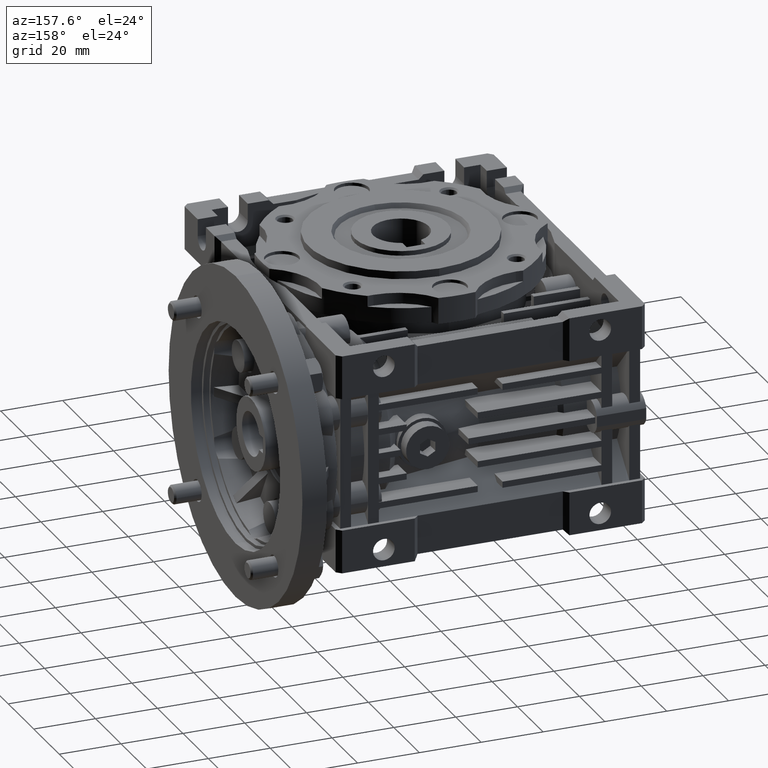
[diagram: clean part render]
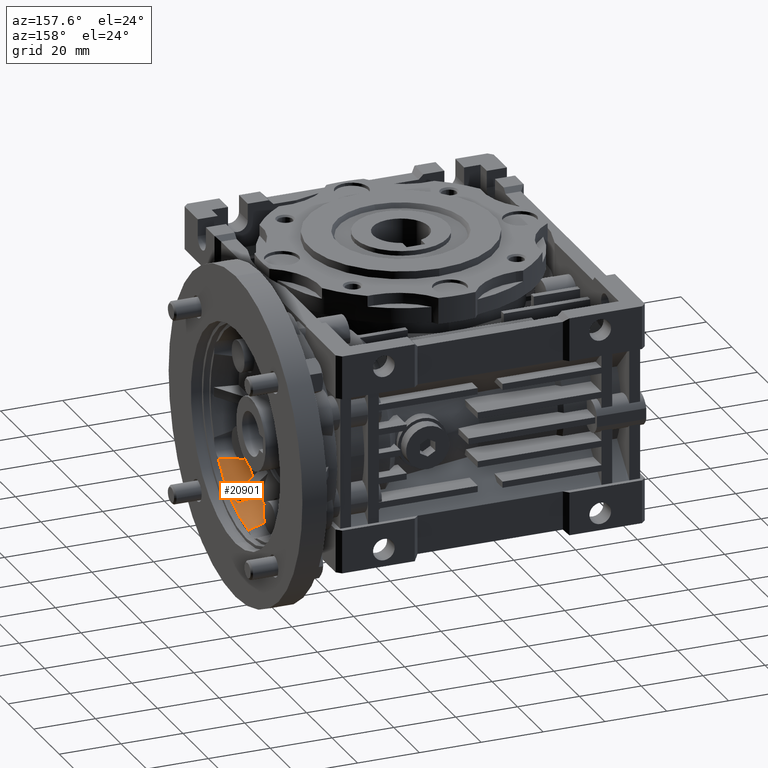
[diagram: same view with one face highlighted and labeled with its STEP entity id]
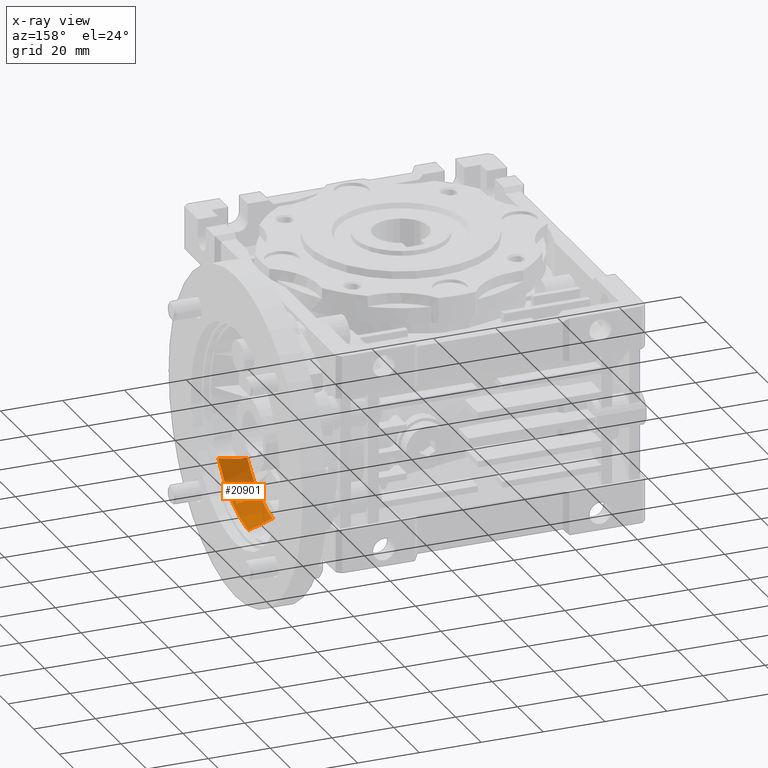
[diagram: x-ray of the same camera — body ghosted, the highlighted face saturated]
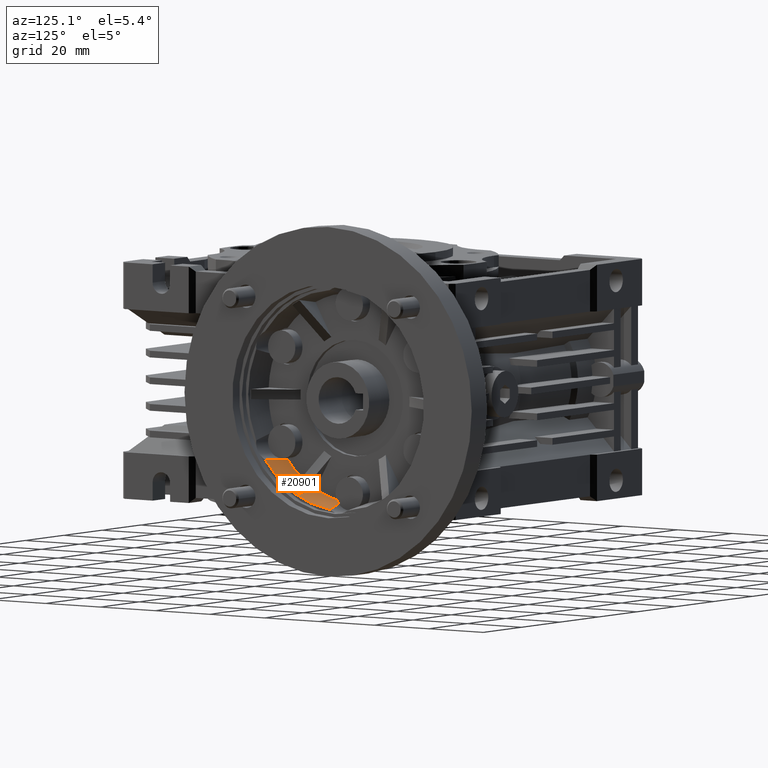
[diagram: same view with one face highlighted and labeled with its STEP entity id]
A machine part, auxiliary view. The second image highlights one B-rep face of the part: STEP entity #20901.
The next image is the same camera in x-ray: the body ghosted, the highlighted face saturated — about 1% of this face is hidden behind the body in this view.
A second angle (auxiliary view) of the same face is appended — the face is thin or edge-on in the first view.
In plain terms, the highlighted conical surface has half-angle 10 deg.
Its self-contained STEP definition (entity closure, byte-faithful):
#78 = AXIS2_PLACEMENT_3D ( 'NONE', #29719, #8530, #27412 ) ;
#464 = VERTEX_POINT ( 'NONE', #13999 ) ;
#839 = EDGE_LOOP ( 'NONE', ( #23889, #24155, #6917, #5422, #18368, #25917, #28679, #22511, #18985, #18391, #20325 ) ) ;
#957 = DIRECTION ( 'NONE',  ( -1.000000000000000000, 0.000000000000000000, 0.000000000000000000 ) ) ;
#1328 = CARTESIAN_POINT ( 'NONE',  ( 63.45000000000000284, 24.24504818301614861, -28.89929554276410428 ) ) ;
#1568 = AXIS2_PLACEMENT_3D ( 'NONE', #8133, #12939, #5805 ) ;
#1698 = CARTESIAN_POINT ( 'NONE',  ( 56.00000000000000000, 25.51623775645605008, -28.08661209056594998 ) ) ;
#1824 = AXIS2_PLACEMENT_3D ( 'NONE', #11896, #16501, #7544 ) ;
#2630 = CARTESIAN_POINT ( 'NONE',  ( 56.05498405366245152, 15.31827599214349966, -19.75000000000000000 ) ) ;
#3495 = CARTESIAN_POINT ( 'NONE',  ( 61.01182078064474723, 14.10770796952439810, -19.61835343876099103 ) ) ;
#3653 = CARTESIAN_POINT ( 'NONE',  ( 61.71407725827617696, 13.91813552930519471, -19.57283171435972235 ) ) ;
#4062 = CARTESIAN_POINT ( 'NONE',  ( 63.80401366623910064, 36.55971425548536757, -32.79799751969065369 ) ) ;
#4319 = CARTESIAN_POINT ( 'NONE',  ( 63.45000000000000284, 22.26063198869565340, -27.72548668974124908 ) ) ;
#4726 = DIRECTION ( 'NONE',  ( 0.000000000000000000, 0.000000000000000000, -1.000000000000000000 ) ) ;
#5222 = B_SPLINE_CURVE_WITH_KNOTS ( 'NONE', 3,
 ( #24876, #19491, #17307, #2630 ),
 .UNSPECIFIED., .F., .F.,
 ( 4, 4 ),
 ( 1.430489624538200128E-17, 5.625064284994350290E-05 ),
 .UNSPECIFIED. ) ;
#5321 = EDGE_CURVE ( 'NONE', #10626, #17032, #19171, .T. ) ;
#5422 = ORIENTED_EDGE ( 'NONE', *, *, #28759, .F. ) ;
#5734 = EDGE_CURVE ( 'NONE', #464, #17636, #10713, .T. ) ;
#5805 = DIRECTION ( 'NONE',  ( 0.000000000000000000, 0.000000000000000000, -1.000000000000000000 ) ) ;
#5910 = EDGE_CURVE ( 'NONE', #17452, #14572, #16380, .T. ) ;
#5972 = CARTESIAN_POINT ( 'NONE',  ( 64.50000000000000000, 36.75473790907711447, -32.94052631578951207 ) ) ;
#6388 = CARTESIAN_POINT ( 'NONE',  ( 61.69598390859453474, 36.08668373186583977, -32.37031947633499840 ) ) ;
#6648 = CARTESIAN_POINT ( 'NONE',  ( 58.48332995202519413, 22.69897544871635375, -26.96625354581984979 ) ) ;
#6917 = ORIENTED_EDGE ( 'NONE', *, *, #5734, .F. ) ;
#7390 = EDGE_CURVE ( 'NONE', #12076, #30443, #21822, .T. ) ;
#7544 = DIRECTION ( 'NONE',  ( 0.000000000000000000, 0.000000000000000000, -1.000000000000000000 ) ) ;
#7574 = EDGE_CURVE ( 'NONE', #9211, #10715, #12453, .T. ) ;
#7979 = AXIS2_PLACEMENT_3D ( 'NONE', #26597, #21634, #10037 ) ;
#8079 = DIRECTION ( 'NONE',  ( 0.000000000000000000, 0.000000000000000000, -1.000000000000000000 ) ) ;
#8133 = CARTESIAN_POINT ( 'NONE',  ( 56.00000000000000000, 40.00000000000000000, 0.000000000000000000 ) ) ;
#8139 = CARTESIAN_POINT ( 'NONE',  ( 58.89805993420311836, 14.65665499224591883, -19.72275360087351359 ) ) ;
#8298 = CARTESIAN_POINT ( 'NONE',  ( 56.05498405366245152, 15.31827599214349966, -19.75000000000000000 ) ) ;
#8530 = DIRECTION ( 'NONE',  ( 1.000000000000000000, 0.000000000000000000, 0.000000000000000000 ) ) ;
#8713 = CARTESIAN_POINT ( 'NONE',  ( 58.86161911471147334, 35.58566661508699980, -31.80210405803109097 ) ) ;
#9211 = VERTEX_POINT ( 'NONE', #26016 ) ;
#10037 = DIRECTION ( 'NONE',  ( 0.000000000000000000, 0.000000000000000000, -1.000000000000000000 ) ) ;
#10626 = VERTEX_POINT ( 'NONE', #5972 ) ;
#10713 = B_SPLINE_CURVE_WITH_KNOTS ( 'NONE', 3,
 ( #26949, #27573, #22615, #22299 ),
 .UNSPECIFIED., .F., .F.,
 ( 4, 4 ),
 ( 0.000000000000000000, 0.007565175508221579775 ),
 .UNSPECIFIED. ) ;
#10715 = VERTEX_POINT ( 'NONE', #26823 ) ;
#11569 = CARTESIAN_POINT ( 'NONE',  ( 63.45000000000000284, 40.00000000000000000, 0.000000000000000000 ) ) ;
#11896 = CARTESIAN_POINT ( 'NONE',  ( 64.50000000000000000, 40.00000000000000000, 0.000000000000000000 ) ) ;
#12076 = VERTEX_POINT ( 'NONE', #17839 ) ;
#12453 = B_SPLINE_CURVE_WITH_KNOTS ( 'NONE', 3,
 ( #8298, #17705, #8139, #3495, #3653, #26877, #22536, #24698 ),
 .UNSPECIFIED., .F., .F.,
 ( 4, 2, 2, 4 ),
 ( 1.507912809346807067E-16, 0.004372645825401456042, 0.006558968738102098628, 0.008745291650802761163 ),
 .UNSPECIFIED. ) ;
#12898 = CARTESIAN_POINT ( 'NONE',  ( 60.98915348931416247, 35.95190532233660008, -32.22800041462966902 ) ) ;
#12939 = DIRECTION ( 'NONE',  ( 1.000000000000000000, 0.000000000000000000, 0.000000000000000000 ) ) ;
#13087 = CARTESIAN_POINT ( 'NONE',  ( 63.37547788675198746, 23.31498393899530086, -28.36232270111505116 ) ) ;
#13239 = AXIS2_PLACEMENT_3D ( 'NONE', #22000, #957, #8079 ) ;
#13999 = CARTESIAN_POINT ( 'NONE',  ( 63.45000000000000284, 24.85870820004899784, -29.22548668974124908 ) ) ;
#14029 = CARTESIAN_POINT ( 'NONE',  ( 56.00000000000000000, 22.91816154510269854, -26.58661209056594998 ) ) ;
#14192 = FACE_OUTER_BOUND ( 'NONE', #839, .T. ) ;
#14572 = VERTEX_POINT ( 'NONE', #14029 ) ;
#14733 = EDGE_CURVE ( 'NONE', #17636, #17032, #23766, .T. ) ;
#14805 = EDGE_CURVE ( 'NONE', #30443, #22821, #17107, .T. ) ;
#15147 = CONICAL_SURFACE ( 'NONE', #1824, 33.09999999999999432, 0.1745329251994325870 ) ;
#15265 = CARTESIAN_POINT ( 'NONE',  ( 63.45000000000000284, 22.84995181698455013, -28.09383628029029722 ) ) ;
#16073 = CARTESIAN_POINT ( 'NONE',  ( 60.96666342072400369, 22.47979931293179945, -27.34587774880525046 ) ) ;
#16380 = CIRCLE ( 'NONE', #7979, 31.60122066397810059 ) ;
#16431 = CARTESIAN_POINT ( 'NONE',  ( 56.00000000000000711, 35.23066888404036234, -31.23924820093745325 ) ) ;
#16501 = DIRECTION ( 'NONE',  ( 1.000000000000000000, 0.000000000000000000, 0.000000000000000000 ) ) ;
#17032 = VERTEX_POINT ( 'NONE', #16431 ) ;
#17107 = B_SPLINE_CURVE_WITH_KNOTS ( 'NONE', 3,
 ( #20036, #13087, #22528, #1328 ),
 .UNSPECIFIED., .F., .F.,
 ( 4, 4 ),
 ( 8.456131959498519990E-16, 0.001610918524946755147 ),
 .UNSPECIFIED. ) ;
#17307 = CARTESIAN_POINT ( 'NONE',  ( 56.03665710497639907, 15.32241475479820103, -19.75000000000000000 ) ) ;
#17452 = VERTEX_POINT ( 'NONE', #19339 ) ;
#17636 = VERTEX_POINT ( 'NONE', #1698 ) ;
#17660 = CARTESIAN_POINT ( 'NONE',  ( 64.50000000000000000, 36.75473790907711447, -32.94052631578951207 ) ) ;
#17705 = CARTESIAN_POINT ( 'NONE',  ( 57.47966782043989298, 14.99654060292128932, -19.75000000000000355 ) ) ;
#17765 = EDGE_CURVE ( 'NONE', #14572, #12076, #21493, .T. ) ;
#17839 = CARTESIAN_POINT ( 'NONE',  ( 63.45000000000000284, 22.26063198869565340, -27.72548668974124908 ) ) ;
#18132 = CARTESIAN_POINT ( 'NONE',  ( 57.43397658757926649, 35.39169404444968592, -31.51961064043080896 ) ) ;
#18257 = CIRCLE ( 'NONE', #22224, 32.91485667025614958 ) ;
#18368 = ORIENTED_EDGE ( 'NONE', *, *, #14805, .F. ) ;
#18391 = ORIENTED_EDGE ( 'NONE', *, *, #7574, .T. ) ;
#18450 = EDGE_CURVE ( 'NONE', #17452, #9211, #5222, .T. ) ;
#18985 = ORIENTED_EDGE ( 'NONE', *, *, #18450, .T. ) ;
#19171 = B_SPLINE_CURVE_WITH_KNOTS ( 'NONE', 3,
 ( #17660, #4062, #29763, #6388, #12898, #8713, #18132, #22944 ),
 .UNSPECIFIED., .F., .F.,
 ( 4, 2, 2, 4 ),
 ( 1.699674944388147786E-17, 0.002200385386942920428, 0.004400770773885845193, 0.008801541547771693855 ),
 .UNSPECIFIED. ) ;
#19339 = CARTESIAN_POINT ( 'NONE',  ( 56.00000000000000000, 15.33068302084065060, -19.74998600594934928 ) ) ;
#19491 = CARTESIAN_POINT ( 'NONE',  ( 56.01832908575049430, 15.32655042739864903, -19.74999532837410143 ) ) ;
#20036 = CARTESIAN_POINT ( 'NONE',  ( 63.45000000000000284, 22.84995181698455013, -28.09383628029029722 ) ) ;
#20325 = ORIENTED_EDGE ( 'NONE', *, *, #26884, .F. ) ;
#20901 = ADVANCED_FACE ( 'NONE', ( #14192 ), #15147, .F. ) ;
#21493 = B_SPLINE_CURVE_WITH_KNOTS ( 'NONE', 3,
 ( #22604, #6648, #16073, #4319 ),
 .UNSPECIFIED., .F., .F.,
 ( 4, 4 ),
 ( 0.000000000000000000, 0.007565175508221570234 ),
 .UNSPECIFIED. ) ;
#21593 = DIRECTION ( 'NONE',  ( 1.000000000000000000, 0.000000000000000000, 0.000000000000000000 ) ) ;
#21634 = DIRECTION ( 'NONE',  ( 1.000000000000000000, 0.000000000000000000, 0.000000000000000000 ) ) ;
#21822 = CIRCLE ( 'NONE', #78, 32.91485667025614958 ) ;
#22000 = CARTESIAN_POINT ( 'NONE',  ( 64.50000000000000000, 40.00000000000000000, 0.000000000000000000 ) ) ;
#22224 = AXIS2_PLACEMENT_3D ( 'NONE', #11569, #21593, #4726 ) ;
#22299 = CARTESIAN_POINT ( 'NONE',  ( 56.00000000000000000, 25.51623775645605008, -28.08661209056594998 ) ) ;
#22511 = ORIENTED_EDGE ( 'NONE', *, *, #5910, .F. ) ;
#22528 = CARTESIAN_POINT ( 'NONE',  ( 63.37547788675198746, 23.78001606100465182, -28.63080912193895244 ) ) ;
#22536 = CARTESIAN_POINT ( 'NONE',  ( 63.80848850898816949, 13.31482325903273356, -19.37774589229297817 ) ) ;
#22604 = CARTESIAN_POINT ( 'NONE',  ( 56.00000000000000000, 22.91816154510269854, -26.58661209056594998 ) ) ;
#22615 = CARTESIAN_POINT ( 'NONE',  ( 58.48332995202519413, 25.29705166006969819, -28.46625354581989953 ) ) ;
#22821 = VERTEX_POINT ( 'NONE', #27426 ) ;
#22944 = CARTESIAN_POINT ( 'NONE',  ( 56.00000000000000711, 35.23066888404036234, -31.23924820093745325 ) ) ;
#23766 = CIRCLE ( 'NONE', #1568, 31.60122066397810059 ) ;
#23889 = ORIENTED_EDGE ( 'NONE', *, *, #5321, .T. ) ;
#24155 = ORIENTED_EDGE ( 'NONE', *, *, #14733, .F. ) ;
#24698 = CARTESIAN_POINT ( 'NONE',  ( 64.50000000000002842, 13.09529844195794546, -19.28074257057257057 ) ) ;
#24876 = CARTESIAN_POINT ( 'NONE',  ( 56.00000000000000000, 15.33068302084065060, -19.74998600594934928 ) ) ;
#25917 = ORIENTED_EDGE ( 'NONE', *, *, #7390, .F. ) ;
#26016 = CARTESIAN_POINT ( 'NONE',  ( 56.05498405366245152, 15.31827599214349966, -19.75000000000000000 ) ) ;
#26597 = CARTESIAN_POINT ( 'NONE',  ( 56.00000000000000000, 40.00000000000000000, 0.000000000000000000 ) ) ;
#26823 = CARTESIAN_POINT ( 'NONE',  ( 64.50000000000002842, 13.09529844195794546, -19.28074257057257057 ) ) ;
#26877 = CARTESIAN_POINT ( 'NONE',  ( 63.11238646430548727, 13.52162621048924152, -19.45240140100247217 ) ) ;
#26884 = EDGE_CURVE ( 'NONE', #10626, #10715, #27490, .T. ) ;
#26949 = CARTESIAN_POINT ( 'NONE',  ( 63.45000000000000284, 24.85870820004899784, -29.22548668974124908 ) ) ;
#27412 = DIRECTION ( 'NONE',  ( 0.000000000000000000, 0.000000000000000000, -1.000000000000000000 ) ) ;
#27426 = CARTESIAN_POINT ( 'NONE',  ( 63.45000000000000284, 24.24504818301614861, -28.89929554276410428 ) ) ;
#27490 = CIRCLE ( 'NONE', #13239, 33.09999999999999432 ) ;
#27573 = CARTESIAN_POINT ( 'NONE',  ( 60.96666342072400369, 25.07787552428519717, -28.84587774880530020 ) ) ;
#28679 = ORIENTED_EDGE ( 'NONE', *, *, #17765, .F. ) ;
#28759 = EDGE_CURVE ( 'NONE', #22821, #464, #18257, .T. ) ;
#29719 = CARTESIAN_POINT ( 'NONE',  ( 63.45000000000000284, 40.00000000000000000, 0.000000000000000000 ) ) ;
#29763 = CARTESIAN_POINT ( 'NONE',  ( 63.10338876116941265, 36.39073497317891537, -32.65531262716871197 ) ) ;
#30443 = VERTEX_POINT ( 'NONE', #15265 ) ;